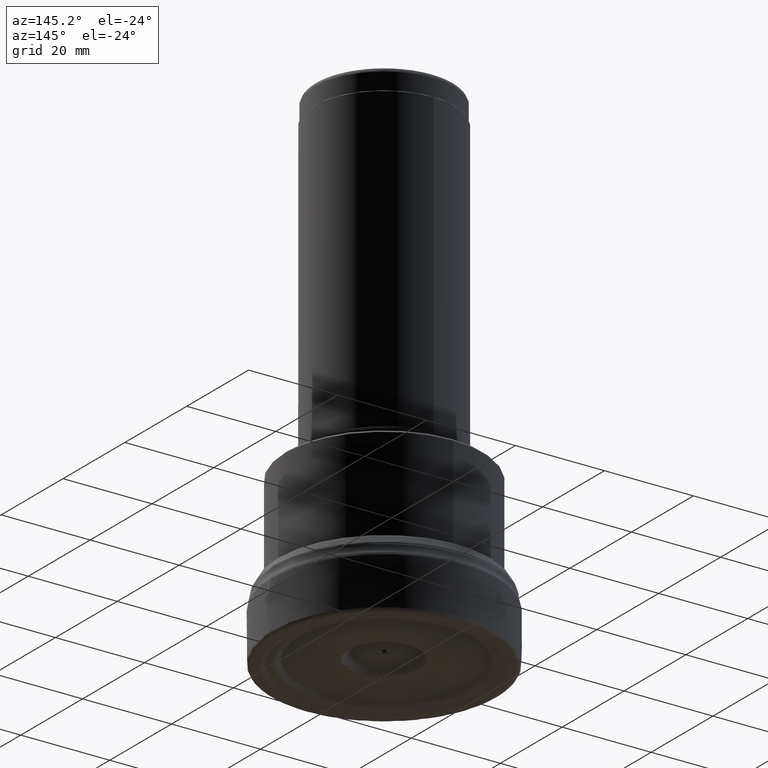
[diagram: clean part render]
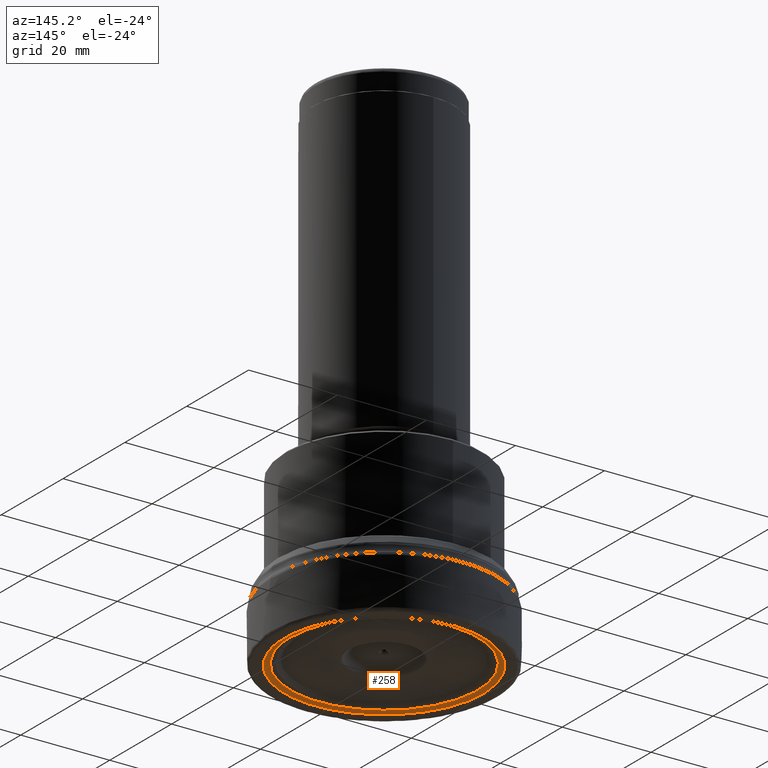
[diagram: same view with one face highlighted and labeled with its STEP entity id]
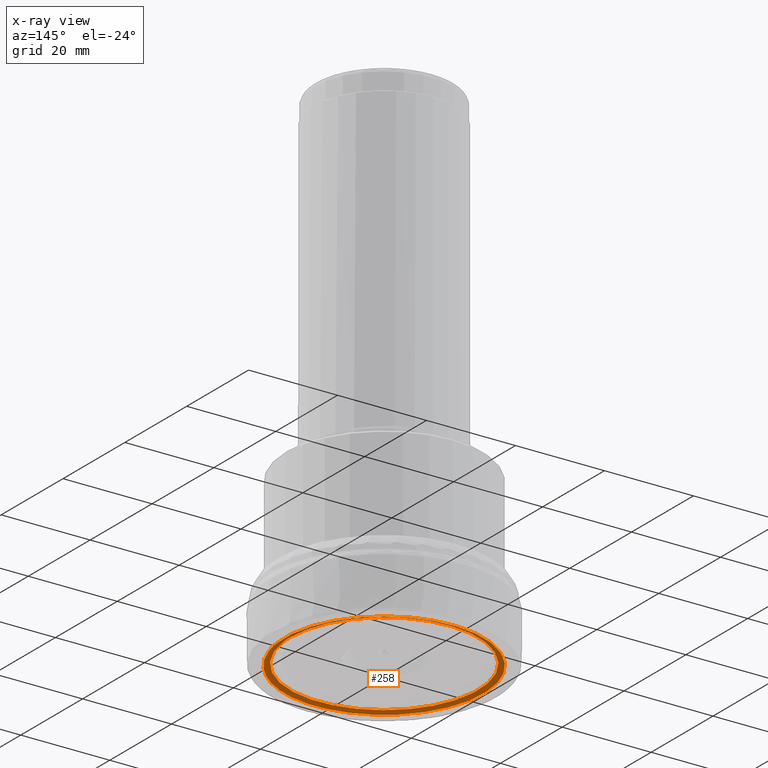
[diagram: x-ray of the same camera — body ghosted, the highlighted face saturated]
A machine part, auxiliary view. The second image highlights one B-rep face of the part: STEP entity #258.
The next image is the same camera in x-ray: the body ghosted, the highlighted face saturated — about 0% of this face is hidden behind the body in this view.
In plain terms, the highlighted face is a SurfaceOfRevolution surface.
Its self-contained STEP definition (entity closure, byte-faithful):
#123=SURFACE_OF_REVOLUTION('',#923,#144);
#144=AXIS1_PLACEMENT('',#1968,#1229);
#154=(
BOUNDED_CURVE()
B_SPLINE_CURVE(3,(#1955,#1956,#1957,#1958,#1959,#1960,#1961),
 .UNSPECIFIED.,.T.,.F.)
B_SPLINE_CURVE_WITH_KNOTS((1,3,3,3,1),(-0.5,0.,0.5,1.,1.5),
 .UNSPECIFIED.)
CURVE()
GEOMETRIC_REPRESENTATION_ITEM()
RATIONAL_B_SPLINE_CURVE((1.,0.333333333333333,0.333333333333333,1.,0.333333333333333,
0.333333333333333,1.))
REPRESENTATION_ITEM('')
);
#258=ADVANCED_FACE('',(#412,#413),#123,.F.);
#316=CIRCLE('',#1016,21.0844738896574);
#412=FACE_BOUND('',#524,.T.);
#413=FACE_BOUND('',#525,.T.);
#524=EDGE_LOOP('',(#717));
#525=EDGE_LOOP('',(#718));
#717=ORIENTED_EDGE('',*,*,#873,.T.);
#718=ORIENTED_EDGE('',*,*,#874,.F.);
#794=VERTEX_POINT('',#1949);
#795=VERTEX_POINT('',#1962);
#873=EDGE_CURVE('',#794,#794,#316,.T.);
#874=EDGE_CURVE('',#795,#795,#154,.T.);
#923=B_SPLINE_CURVE_WITH_KNOTS('',3,(#1963,#1964,#1965,#1966,#1967),
 .UNSPECIFIED.,.F.,.F.,(4,1,4),(0.,0.5,1.),.UNSPECIFIED.);
#1016=AXIS2_PLACEMENT_3D('',#1948,#1226,#1227);
#1226=DIRECTION('',(0.,0.,1.));
#1227=DIRECTION('',(1.,0.,0.));
#1229=DIRECTION('',(0.,0.,1.));
#1948=CARTESIAN_POINT('',(0.,0.,0.610545093927302));
#1949=CARTESIAN_POINT('',(21.0844738896574,0.,0.610545093927302));
#1955=CARTESIAN_POINT('',(22.1192534298299,-2.88303258034741,0.219850045740175));
#1956=CARTESIAN_POINT('',(27.8853185905247,41.3554742793123,0.219850045740175));
#1957=CARTESIAN_POINT('',(-16.353188269135,47.1215394400071,0.219850045740175));
#1958=CARTESIAN_POINT('',(-22.1192534298299,2.88303258034741,0.219850045740175));
#1959=CARTESIAN_POINT('',(-27.8853185905247,-41.3554742793123,0.219850045740175));
#1960=CARTESIAN_POINT('',(16.353188269135,-47.1215394400071,0.219850045740175));
#1961=CARTESIAN_POINT('',(22.1192534298299,-2.88303258034741,0.219850045740175));
#1962=CARTESIAN_POINT('',(22.1192798748405,-2.88303602720098,0.219890593832551));
#1963=CARTESIAN_POINT('',(22.1193737646139,-2.88304390179771,0.219886769487447));
#1964=CARTESIAN_POINT('',(21.9507544345225,-2.80584275012929,0.336449838271439));
#1965=CARTESIAN_POINT('',(21.5721023145279,-2.63511531530614,0.529596291960388));
#1966=CARTESIAN_POINT('',(21.1538989902674,-2.46412939848932,0.60498600253643));
#1967=CARTESIAN_POINT('',(20.9489917131479,-2.38742774635247,0.610542321990195));
#1968=CARTESIAN_POINT('',(0.,0.,0.));